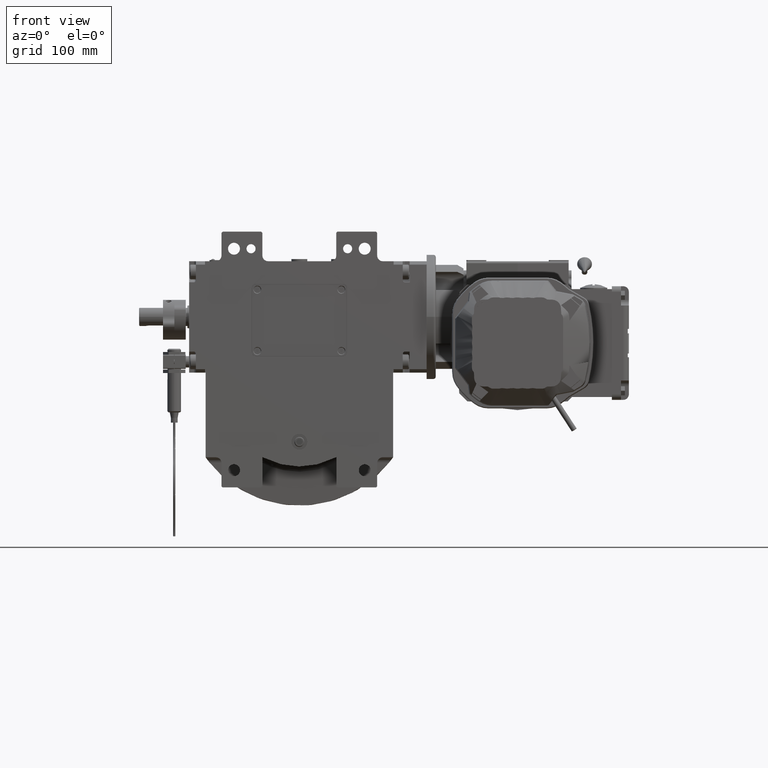
[diagram: clean part render]
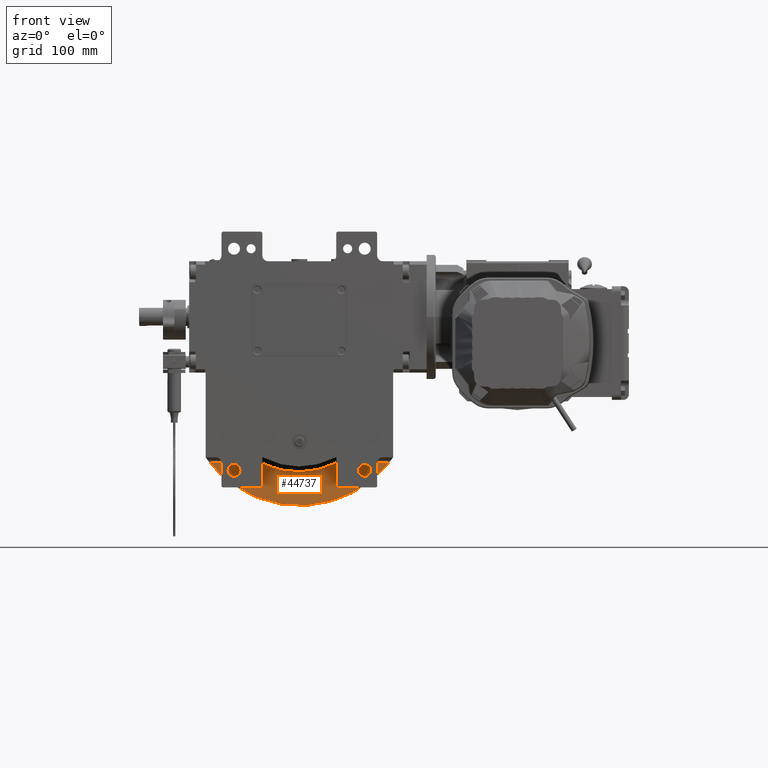
[diagram: same view with one face highlighted and labeled with its STEP entity id]
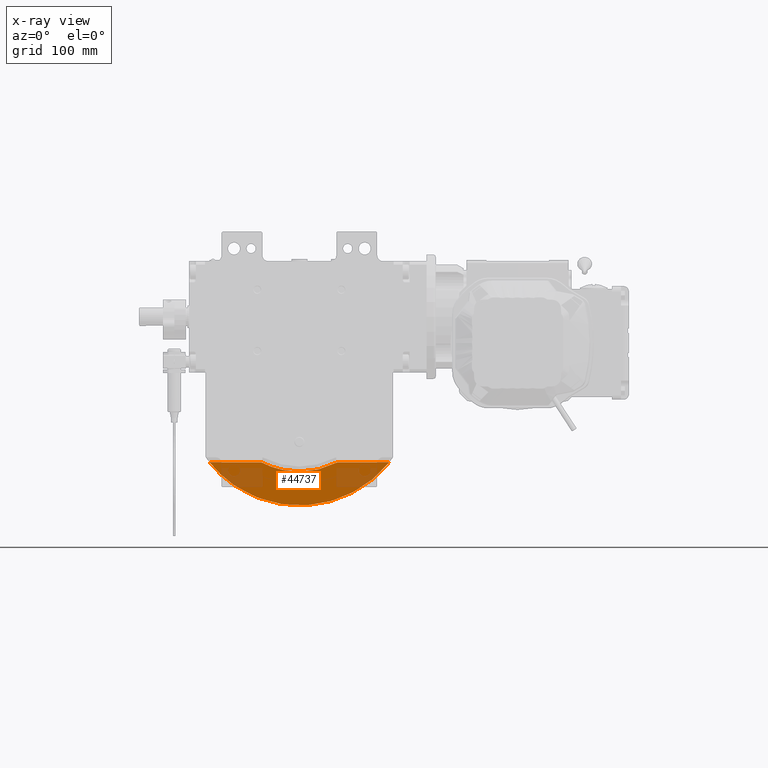
[diagram: x-ray of the same camera — body ghosted, the highlighted face saturated]
A machine part, front view. The second image highlights one B-rep face of the part: STEP entity #44737.
The next image is the same camera in x-ray: the body ghosted, the highlighted face saturated — about 25% of this face is hidden behind the body in this view.
In plain terms, the highlighted planar face has unit normal (0, -0.9962, -0.0872).
Its self-contained STEP definition (entity closure, byte-faithful):
#519 = VERTEX_POINT ( 'NONE', #35999 ) ;
#4563 = LINE ( 'NONE', #35914, #59829 ) ;
#8712 = FACE_OUTER_BOUND ( 'NONE', #29939, .T. ) ;
#10673 = DIRECTION ( 'NONE',  ( -1.000000000000000000, 0.000000000000000000, 0.000000000000000000 ) ) ;
#12024 = DIRECTION ( 'NONE',  ( -1.000000000000000000, 0.000000000000000000, -1.554045907601589977E-16 ) ) ;
#14673 = CARTESIAN_POINT ( 'NONE',  ( 33.32502203102834670, 21.89931739189994886, -63.06422130460889974 ) ) ;
#17602 = CARTESIAN_POINT ( 'NONE',  ( -33.32502203188484913, 21.89931762037159757, -63.06422128626171286 ) ) ;
#18087 = CARTESIAN_POINT ( 'NONE',  ( 12.01816137815721319, 22.87264572054066392, -74.18941237894156870 ) ) ;
#21071 = CARTESIAN_POINT ( 'NONE',  ( 79.04714209825419857, 21.89931762037159757, -63.06422128626171286 ) ) ;
#23141 =( BOUNDED_CURVE ( )  B_SPLINE_CURVE ( 3, ( #66922, #18087, #57907, #35578 ),
 .UNSPECIFIED., .F., .F. ) 
 B_SPLINE_CURVE_WITH_KNOTS ( ( 4, 4 ),
 ( 2.660439210010309807, 3.622819812707135156 ),
 .UNSPECIFIED. ) 
 CURVE ( )  GEOMETRIC_REPRESENTATION_ITEM ( )  RATIONAL_B_SPLINE_CURVE ( ( 1.000000000000000000, 0.9242964254526402357, 0.9242964254526402357, 1.000000000000000000 ) ) 
 REPRESENTATION_ITEM ( '' )  );
#23599 = DIRECTION ( 'NONE',  ( 1.000000000000000000, 0.000000000000000000, 0.000000000000000000 ) ) ;
#26603 = LINE ( 'NONE', #17602, #55279 ) ;
#29939 = EDGE_LOOP ( 'NONE', ( #33216, #33072, #94981, #93426 ) ) ;
#32309 = CARTESIAN_POINT ( 'NONE',  ( -35.11341279681530381, 26.69257427412653882, -117.8513955392394621 ) ) ;
#33072 = ORIENTED_EDGE ( 'NONE', *, *, #85215, .T. ) ;
#33216 = ORIENTED_EDGE ( 'NONE', *, *, #103968, .F. ) ;
#35578 = CARTESIAN_POINT ( 'NONE',  ( -33.32502203188484913, 21.89931762037159757, -63.06422128626171286 ) ) ;
#35635 = AXIS2_PLACEMENT_3D ( 'NONE', #64992, #104350, #23599 ) ;
#35914 = CARTESIAN_POINT ( 'NONE',  ( 79.04714209825419857, 21.89931762037159757, -63.06422128626171286 ) ) ;
#35999 = CARTESIAN_POINT ( 'NONE',  ( -79.04714209825419857, 21.89931762037159757, -63.06422128626171286 ) ) ;
#39247 = CARTESIAN_POINT ( 'NONE',  ( 79.04714209825419857, 21.89931762037159757, -63.06422128626171286 ) ) ;
#44737 = ADVANCED_FACE ( 'NONE', ( #8712 ), #72433, .T. ) ;
#55279 = VECTOR ( 'NONE', #10673, 1000.000000000000000 ) ;
#56326 =( BOUNDED_CURVE ( )  B_SPLINE_CURVE ( 3, ( #39247, #80682, #32309, #88150 ),
 .UNSPECIFIED., .F., .F. ) 
 B_SPLINE_CURVE_WITH_KNOTS ( ( 4, 4 ),
 ( 2.246693557745409908, 4.036491749434144793 ),
 .UNSPECIFIED. ) 
 CURVE ( )  GEOMETRIC_REPRESENTATION_ITEM ( )  RATIONAL_B_SPLINE_CURVE ( ( 1.000000000000000000, 0.7503983596967388481, 0.7503983596967388481, 1.000000000000000000 ) ) 
 REPRESENTATION_ITEM ( '' )  );
#57907 = CARTESIAN_POINT ( 'NONE',  ( -12.01815504891360398, 22.87264572054066747, -74.18941237894163976 ) ) ;
#58552 = CARTESIAN_POINT ( 'NONE',  ( -33.32502203188484913, 21.89931762037159757, -63.06422128626171286 ) ) ;
#59829 = VECTOR ( 'NONE', #12024, 1000.000000000000000 ) ;
#60358 = VERTEX_POINT ( 'NONE', #14673 ) ;
#63532 = EDGE_CURVE ( 'NONE', #87776, #519, #26603, .T. ) ;
#64992 = CARTESIAN_POINT ( 'NONE',  ( 33.32502203188470702, 21.50000000000000000, -58.50000000000000000 ) ) ;
#66922 = CARTESIAN_POINT ( 'NONE',  ( 33.32502203102834670, 21.89931739189994886, -63.06422130460889974 ) ) ;
#72433 = PLANE ( 'NONE',  #35635 ) ;
#80000 = VERTEX_POINT ( 'NONE', #21071 ) ;
#80682 = CARTESIAN_POINT ( 'NONE',  ( 35.11341279681546723, 26.69257427412652461, -117.8513955392394053 ) ) ;
#85215 = EDGE_CURVE ( 'NONE', #80000, #60358, #4563, .T. ) ;
#87776 = VERTEX_POINT ( 'NONE', #58552 ) ;
#88150 = CARTESIAN_POINT ( 'NONE',  ( -79.04714209825419857, 21.89931762037159757, -63.06422128626171286 ) ) ;
#88222 = EDGE_CURVE ( 'NONE', #60358, #87776, #23141, .T. ) ;
#93426 = ORIENTED_EDGE ( 'NONE', *, *, #63532, .T. ) ;
#94981 = ORIENTED_EDGE ( 'NONE', *, *, #88222, .T. ) ;
#103968 = EDGE_CURVE ( 'NONE', #80000, #519, #56326, .T. ) ;
#104350 = DIRECTION ( 'NONE',  ( 0.000000000000000000, -0.9961946980917455452, -0.08715574274765815199 ) ) ;